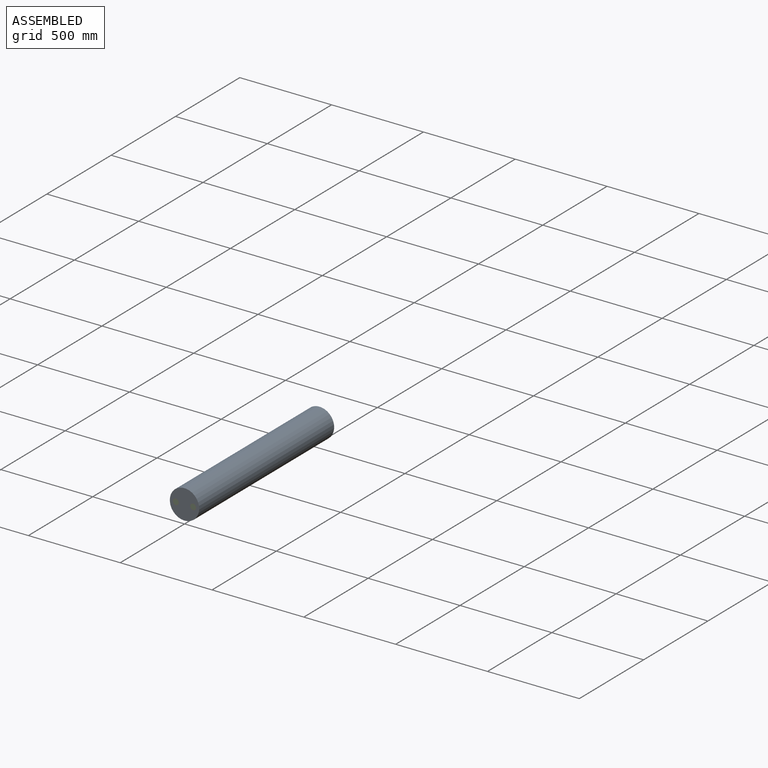
[diagram: assembled view]
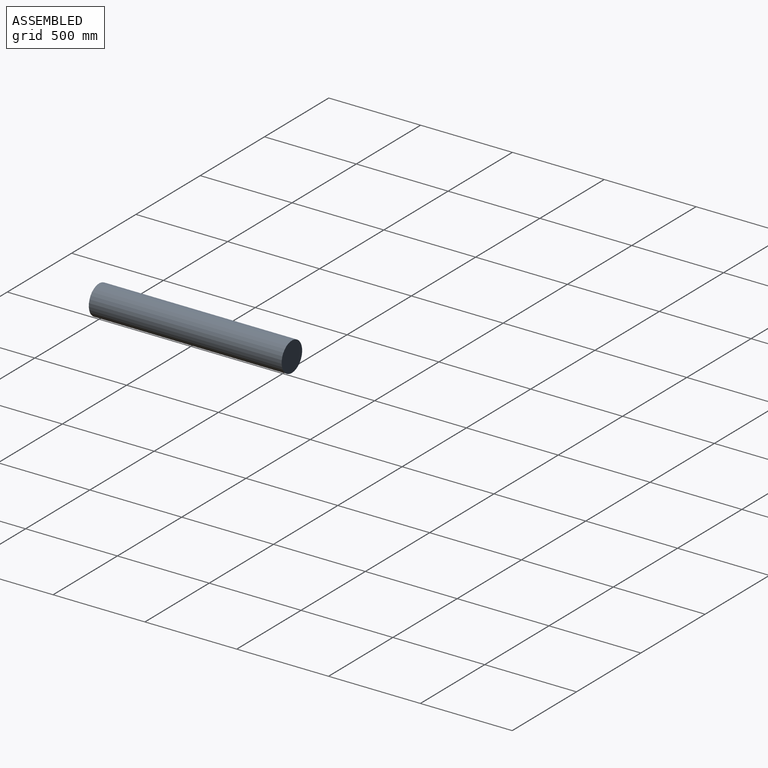
[diagram: assembled view, second angle]
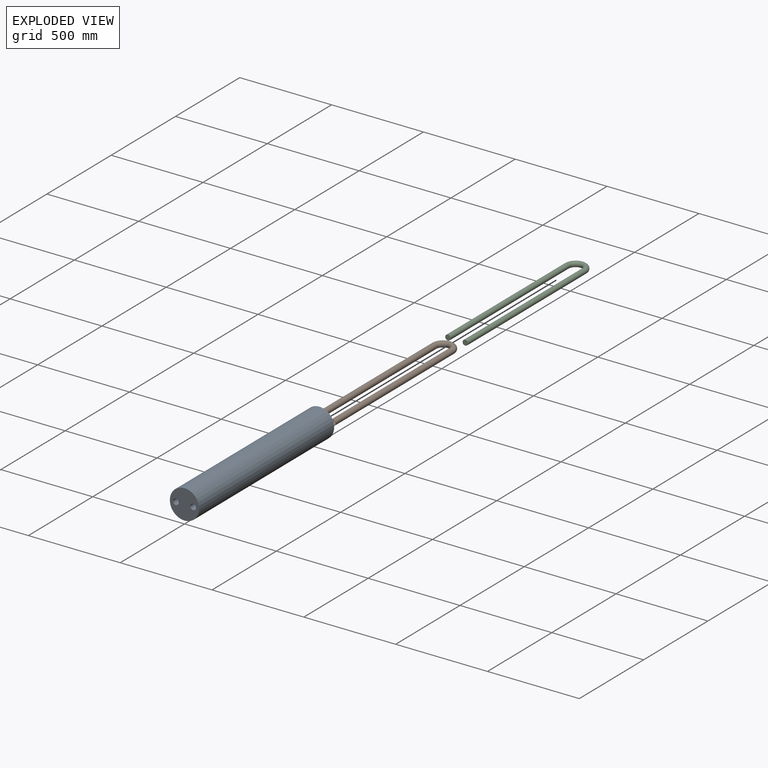
[diagram: exploded view]
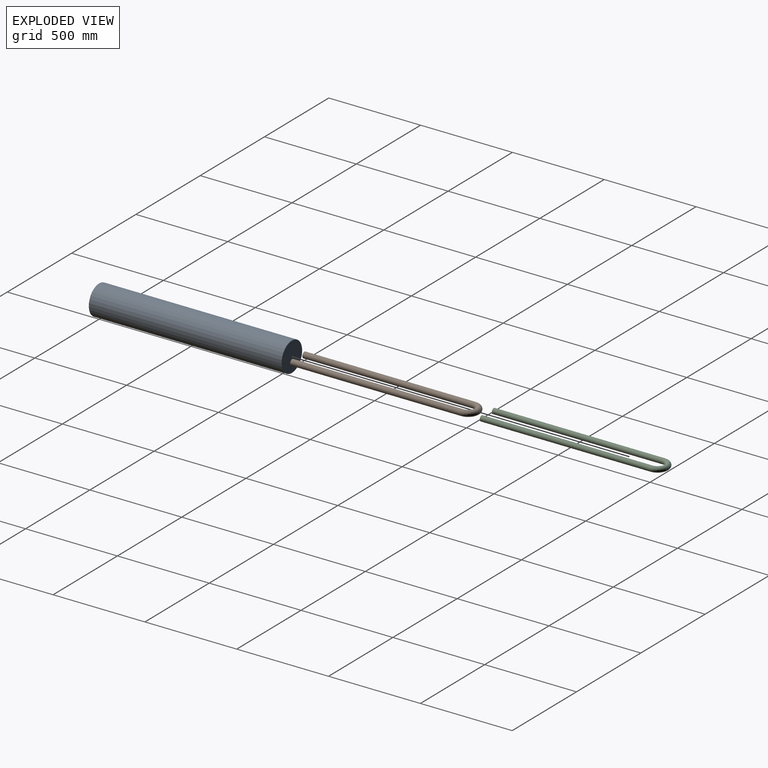
[diagram: exploded view, second angle]
ASSEMBLY  parts=3 mates=2
PART A: 6 faces, bbox 160x1050x160 mm
  f0: cylinder r=80mm len=1050mm, axis (0,-1,0), area 527787.6mm2, adj f1,f2
  f1: plane 160x160mm, normal (0,1,0), area 20106.2mm2, adj f0
  f2: plane 160x160mm, normal (0,-1,0), area 18497.7mm2, adj f0,f3,f5
  f3: cylinder r=16mm len=925.8mm, axis (0,1,0), area 93071.6mm2, adj f2,f4
  f4: torus R=47.25mm, axis (0,0,1), area 14922.8mm2, adj f3,f5
  f5: cylinder r=16mm len=925.8mm, axis (0,-1,0), area 93071.6mm2, adj f2,f4
PART B: 8 faces, bbox 136.9x994.3x32 mm
  f0: cylinder r=14.5mm len=925.8mm, axis (0,1,0), area 84346.1mm2, adj f1,f3
  f1: torus R=47.25mm, axis (0,0,1), area 13523.8mm2, adj f0,f2
  f2: cylinder r=14.5mm len=925.8mm, axis (0,-1,0), area 84346.1mm2, adj f1,f4
  f3: plane 32x32mm, normal (0,-1,0), area 143.7mm2, adj f0,f5
  f4: plane 32x32mm, normal (0,-1,0), area 143.7mm2, adj f2,f7
  f5: cylinder r=16mm len=925.8mm, axis (0,1,0), area 93071.6mm2, adj f3,f6
  f6: torus R=47.25mm, axis (0,0,1), area 14922.8mm2, adj f5,f7
  f7: cylinder r=16mm len=925.8mm, axis (0,-1,0), area 93071.6mm2, adj f4,f6
PART C: 5 faces, bbox 133.7x992.6x29 mm
  f0: plane 29x29mm, normal (0,-1,0), area 660.5mm2, adj f2
  f1: plane 29x29mm, normal (0,-1,0), area 660.5mm2, adj f4
  f2: cylinder r=14.5mm len=925.8mm, axis (0,1,0), area 84346.1mm2, adj f0,f3
  f3: torus R=47.25mm, axis (0,0,1), area 13523.8mm2, adj f2,f4
  f4: cylinder r=14.5mm len=925.8mm, axis (0,-1,0), area 84346.1mm2, adj f1,f3
PLACE A at identity
PLACE B rot(axis=(0,1,0),180deg) t=(0,0,0)mm
PLACE C rot(axis=(0,1,0),180deg) t=(0,0,0)mm
MATE fastened B.f2 <-> A.f3  axis (0,-1,0) through (47.25,0,0)mm
MATE fastened C.f4 <-> A.f3  axis (0,-1,0) through (47.25,0,0)mm
